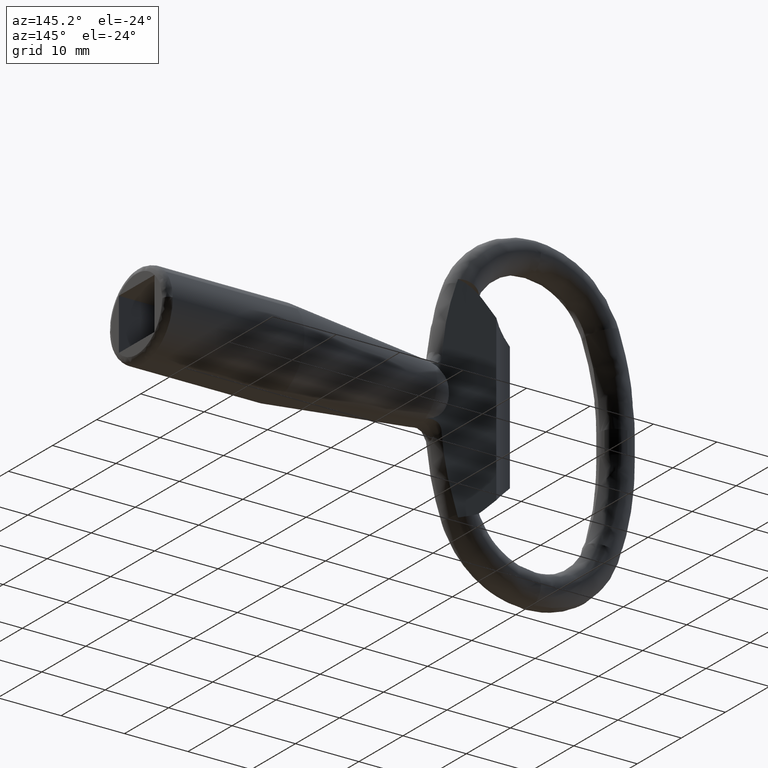
[diagram: clean part render]
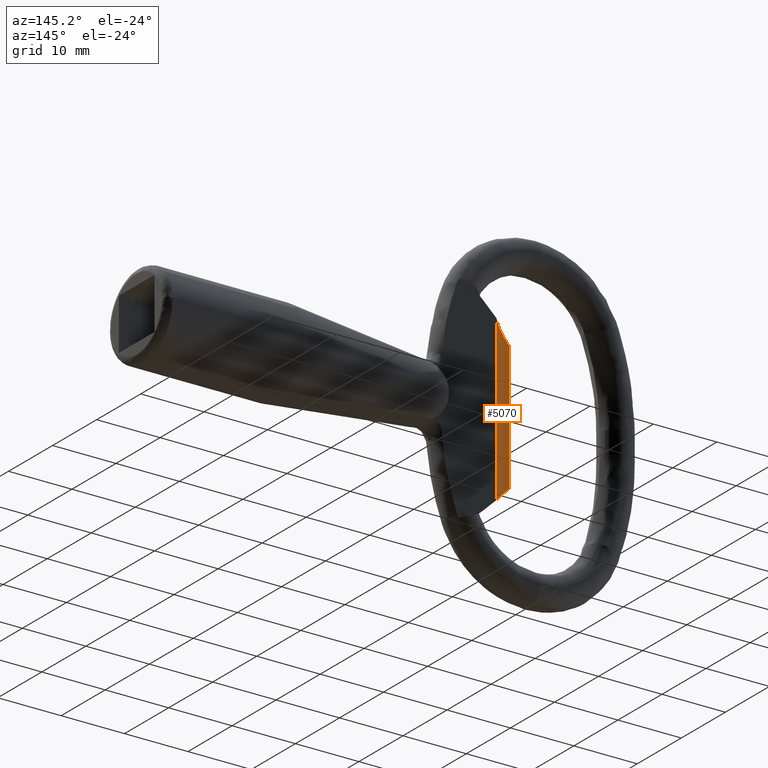
[diagram: same view with one face highlighted and labeled with its STEP entity id]
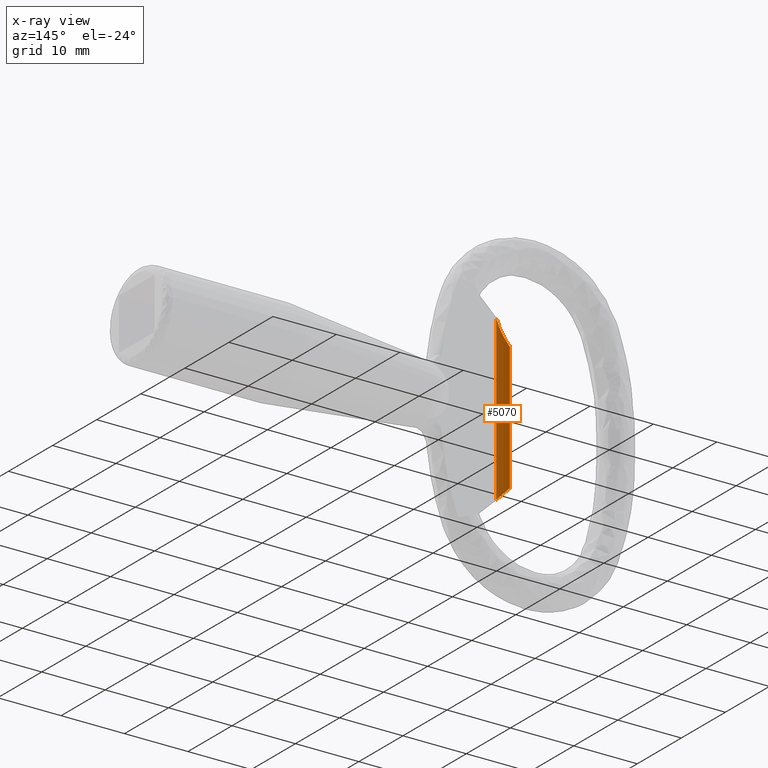
[diagram: x-ray of the same camera — body ghosted, the highlighted face saturated]
A machine part, auxiliary view. The second image highlights one B-rep face of the part: STEP entity #5070.
The next image is the same camera in x-ray: the body ghosted, the highlighted face saturated — about 0% of this face is hidden behind the body in this view.
In plain terms, the highlighted face is a freeform B-spline surface patch.
Its self-contained STEP definition (entity closure, byte-faithful):
#5010=CARTESIAN_POINT('',(-55.689129401155782,1.779103125242314,-13.554257969551699));
#5011=CARTESIAN_POINT('',(-55.689129401155782,1.779103125242314,13.570393990944080));
#5012=CARTESIAN_POINT('',(-57.050409060438717,0.549716607649001,-13.554257969551703));
#5013=CARTESIAN_POINT('',(-57.050409060438717,0.549716607649001,13.570393990944082));
#5014=CARTESIAN_POINT('',(-58.883759706296033,0.492280297249839,-13.554257969551699));
#5015=CARTESIAN_POINT('',(-58.883759706296033,0.492280297249839,13.570393990944083));
#5023=(BOUNDED_SURFACE()B_SPLINE_SURFACE(1,2,((#5010,#5012,#5014),(#5011,#5013,#5015)),.UNSPECIFIED.,.F.,.F.,.U.)B_SPLINE_SURFACE_WITH_KNOTS((2,2),(3,3),(0.0,27.124651960495779),(0.0,3.552739905023725),.UNSPECIFIED.)GEOMETRIC_REPRESENTATION_ITEM()RATIONAL_B_SPLINE_SURFACE(((1.0,0.937789579765744,0.997804650663748),(1.0,0.937789579765744,0.997804650663748)))REPRESENTATION_ITEM('')SURFACE());
#5024=CARTESIAN_POINT('',(-55.721638780275001,1.750000083120950,12.908817113858820));
#5025=VERTEX_POINT('',#5024);
#5026=CARTESIAN_POINT('',(-55.721638780275100,1.750000083120950,-12.908817113858760));
#5027=VERTEX_POINT('',#5026);
#5028=CARTESIAN_POINT('',(-55.721638780275001,1.750000083120950,12.908817113858820));
#5029=CARTESIAN_POINT('',(-55.721638780275100,1.750000083120950,-12.908817113858760));
#5030=QUASI_UNIFORM_CURVE('',1,(#5028,#5029),.UNSPECIFIED.,.F.,.U.);
#5031=EDGE_CURVE('',#5025,#5027,#5030,.T.);
#5032=ORIENTED_EDGE('',*,*,#5031,.T.);
#5033=CARTESIAN_POINT('',(-58.721558661523503,0.500000000000278,-10.027616544066600));
#5034=VERTEX_POINT('',#5033);
#5035=CARTESIAN_POINT('',(-58.721558661523503,0.500000000000278,-10.027616544066600));
#5036=CARTESIAN_POINT('',(-57.006819364535716,0.609543386847184,-11.674496472563286));
#5037=CARTESIAN_POINT('',(-55.721638780275079,1.750000083120919,-12.908817113858740));
#5045=(BOUNDED_CURVE()B_SPLINE_CURVE(2,(#5035,#5036,#5037),.UNSPECIFIED.,.F.,.U.)CURVE()GEOMETRIC_REPRESENTATION_ITEM()QUASI_UNIFORM_CURVE()RATIONAL_B_SPLINE_CURVE((1.0,0.945716556365003,1.0))REPRESENTATION_ITEM(''));
#5046=EDGE_CURVE('',#5034,#5027,#5045,.T.);
#5047=ORIENTED_EDGE('',*,*,#5046,.F.);
#5048=CARTESIAN_POINT('',(-58.721558661523503,0.500000000000000,10.027616544066600));
#5049=VERTEX_POINT('',#5048);
#5050=CARTESIAN_POINT('',(-58.721558661523503,0.500000000000000,10.027616544066600));
#5051=CARTESIAN_POINT('',(-58.721558661523503,0.500000000000278,-10.027616544066600));
#5052=QUASI_UNIFORM_CURVE('',1,(#5050,#5051),.UNSPECIFIED.,.F.,.U.);
#5053=EDGE_CURVE('',#5049,#5034,#5052,.T.);
#5054=ORIENTED_EDGE('',*,*,#5053,.F.);
#5055=CARTESIAN_POINT('',(-55.721638780275043,1.750000083120950,12.908817113858881));
#5056=CARTESIAN_POINT('',(-57.006819364535680,0.609543386847193,11.674496472563423));
#5057=CARTESIAN_POINT('',(-58.721558661523488,0.500000000000000,10.027616544066730));
#5065=(BOUNDED_CURVE()B_SPLINE_CURVE(2,(#5055,#5056,#5057),.UNSPECIFIED.,.F.,.U.)CURVE()GEOMETRIC_REPRESENTATION_ITEM()QUASI_UNIFORM_CURVE()RATIONAL_B_SPLINE_CURVE((1.0,0.945716556365001,1.0))REPRESENTATION_ITEM(''));
#5066=EDGE_CURVE('',#5025,#5049,#5065,.T.);
#5067=ORIENTED_EDGE('',*,*,#5066,.F.);
#5068=EDGE_LOOP('',(#5032,#5047,#5054,#5067));
#5069=FACE_OUTER_BOUND('',#5068,.T.);
#5070=ADVANCED_FACE('',(#5069),#5023,.F.);